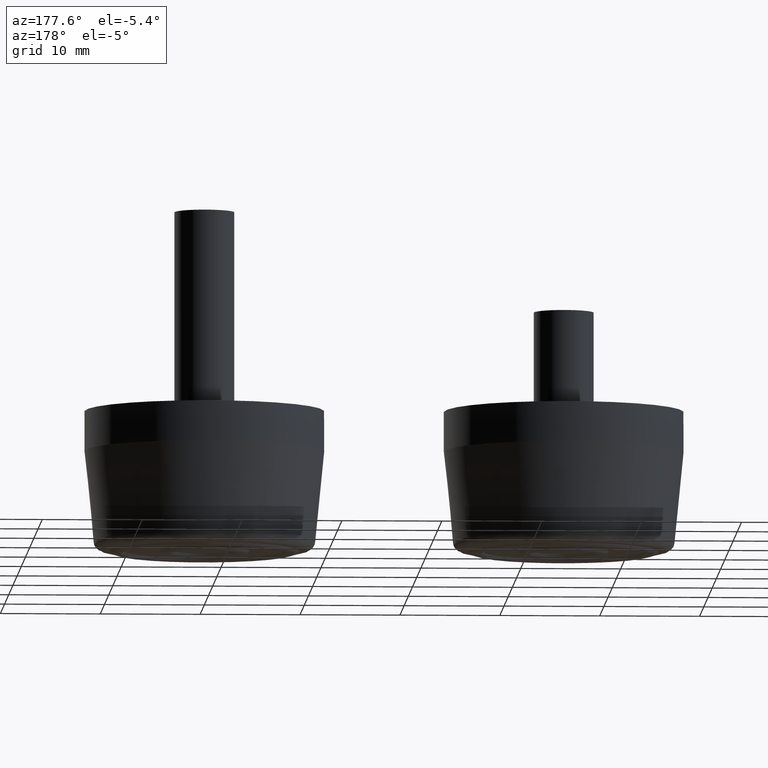
[diagram: clean part render]
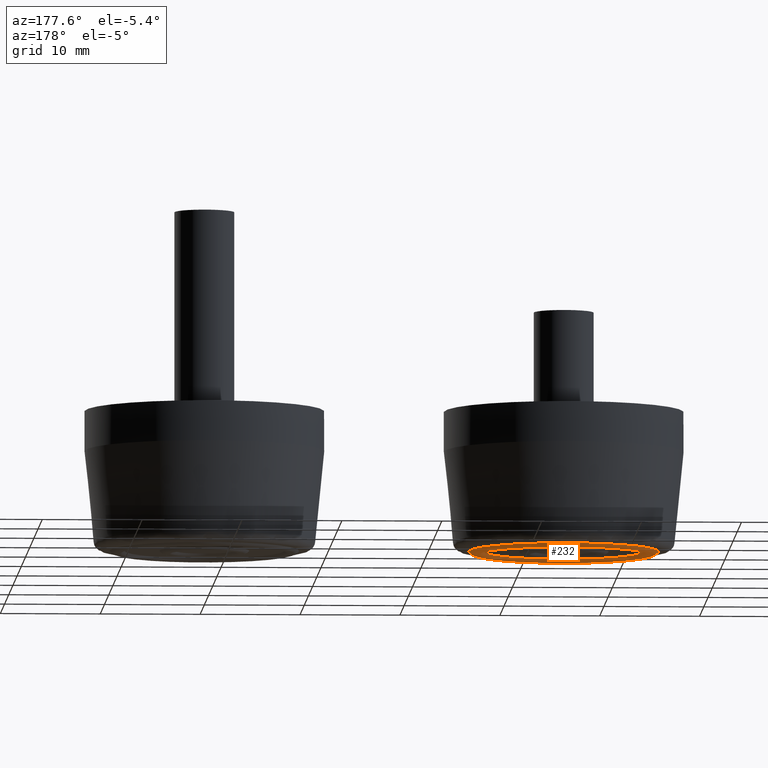
[diagram: same view with one face highlighted and labeled with its STEP entity id]
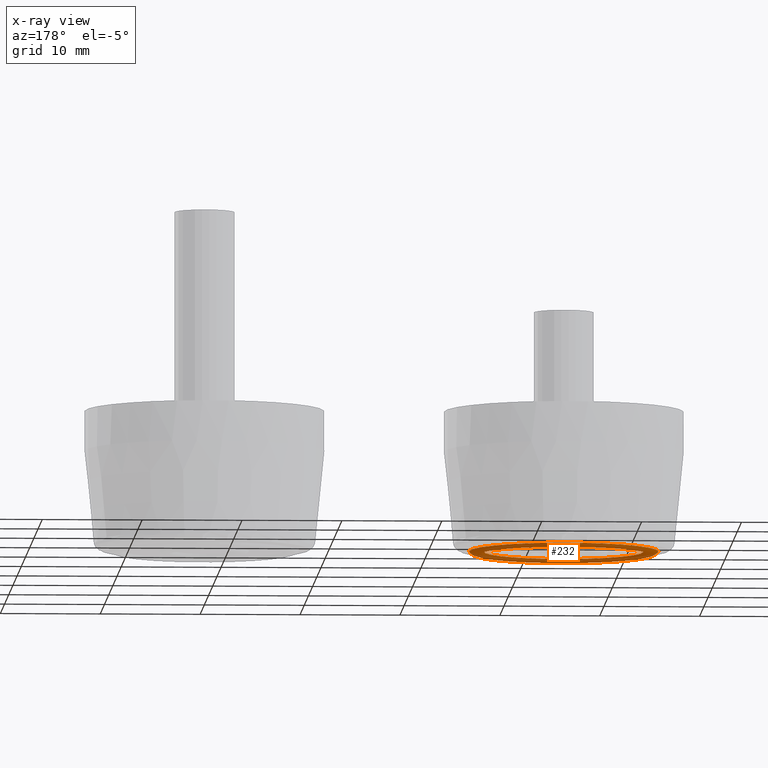
[diagram: x-ray of the same camera — body ghosted, the highlighted face saturated]
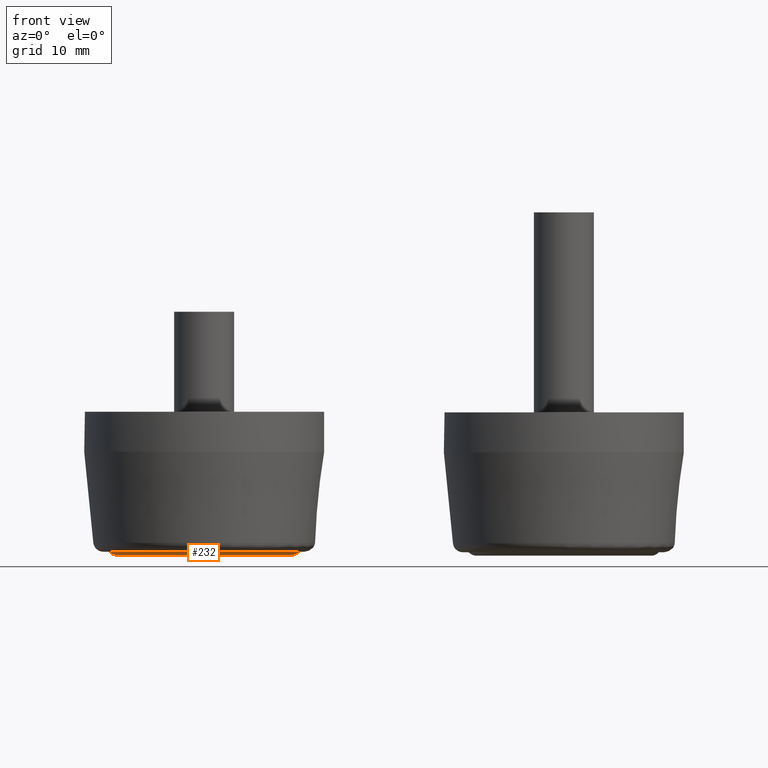
[diagram: same view with one face highlighted and labeled with its STEP entity id]
A machine part, auxiliary view. The second image highlights one B-rep face of the part: STEP entity #232.
The next image is the same camera in x-ray: the body ghosted, the highlighted face saturated — about 0% of this face is hidden behind the body in this view.
A second angle (front view) of the same face is appended — the face is thin or edge-on in the first view.
In plain terms, the highlighted toroidal blend (fillet) surface has major radius 8.75 mm and minor (blend) radius 1 mm.
Its self-contained STEP definition (entity closure, byte-faithful):
#30=TOROIDAL_SURFACE('',#261,8.75,1.);
#47=FACE_BOUND('',#91,.T.);
#66=FACE_OUTER_BOUND('',#90,.T.);
#90=EDGE_LOOP('',(#190));
#91=EDGE_LOOP('',(#191));
#129=CIRCLE('',#262,8.);
#130=CIRCLE('',#263,9.5);
#149=VERTEX_POINT('',#407);
#150=VERTEX_POINT('',#409);
#169=EDGE_CURVE('',#149,#149,#129,.T.);
#170=EDGE_CURVE('',#150,#150,#130,.T.);
#190=ORIENTED_EDGE('',*,*,#169,.F.);
#191=ORIENTED_EDGE('',*,*,#170,.F.);
#232=ADVANCED_FACE('',(#66,#47),#30,.T.);
#261=AXIS2_PLACEMENT_3D('',#406,#316,#317);
#262=AXIS2_PLACEMENT_3D('',#408,#318,#319);
#263=AXIS2_PLACEMENT_3D('',#410,#320,#321);
#316=DIRECTION('center_axis',(0.,0.,-1.));
#317=DIRECTION('ref_axis',(-1.,0.,0.));
#318=DIRECTION('center_axis',(0.,0.,-1.));
#319=DIRECTION('ref_axis',(1.,0.,0.));
#320=DIRECTION('center_axis',(0.,0.,1.));
#321=DIRECTION('ref_axis',(1.,0.,0.));
#406=CARTESIAN_POINT('Origin',(0.,0.,0.661437827766149));
#407=CARTESIAN_POINT('',(-8.,9.79717439317883E-16,0.));
#408=CARTESIAN_POINT('Origin',(0.,0.,0.));
#409=CARTESIAN_POINT('',(-9.5,1.16341445918999E-15,0.));
#410=CARTESIAN_POINT('Origin',(0.,0.,0.));